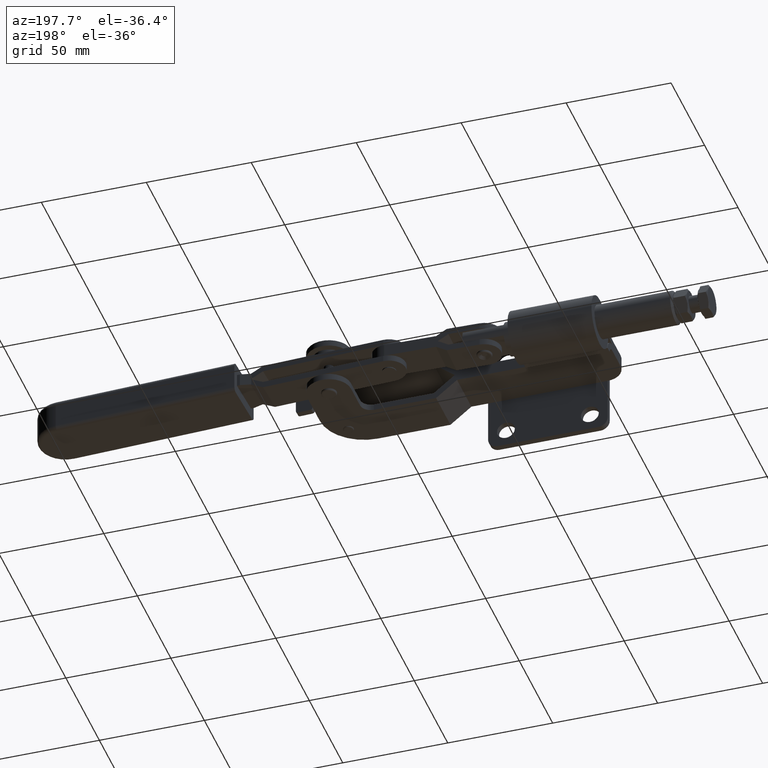
[diagram: clean part render]
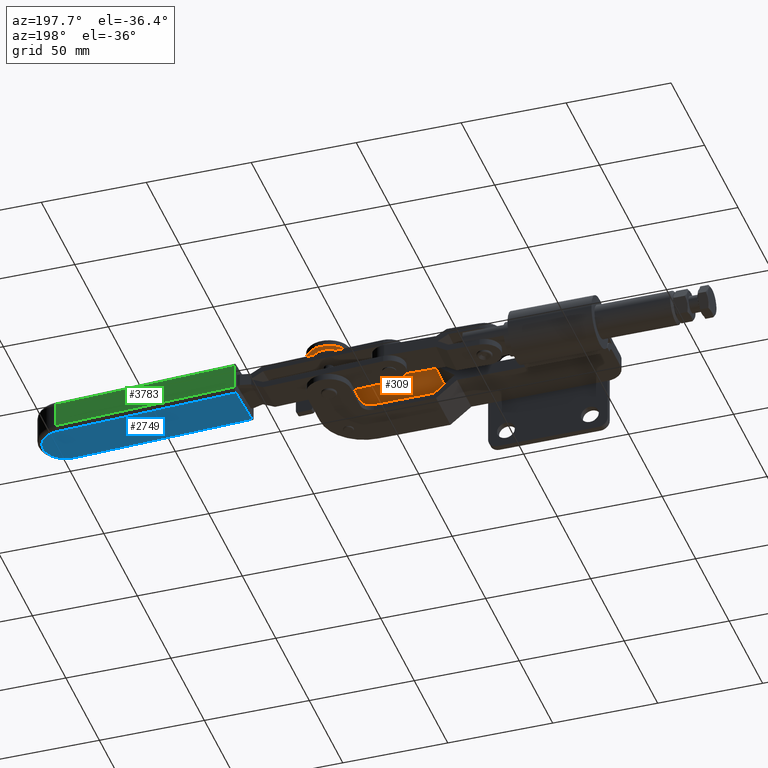
[diagram: same view with three faces highlighted in distinct colors, each labeled with its STEP entity id]
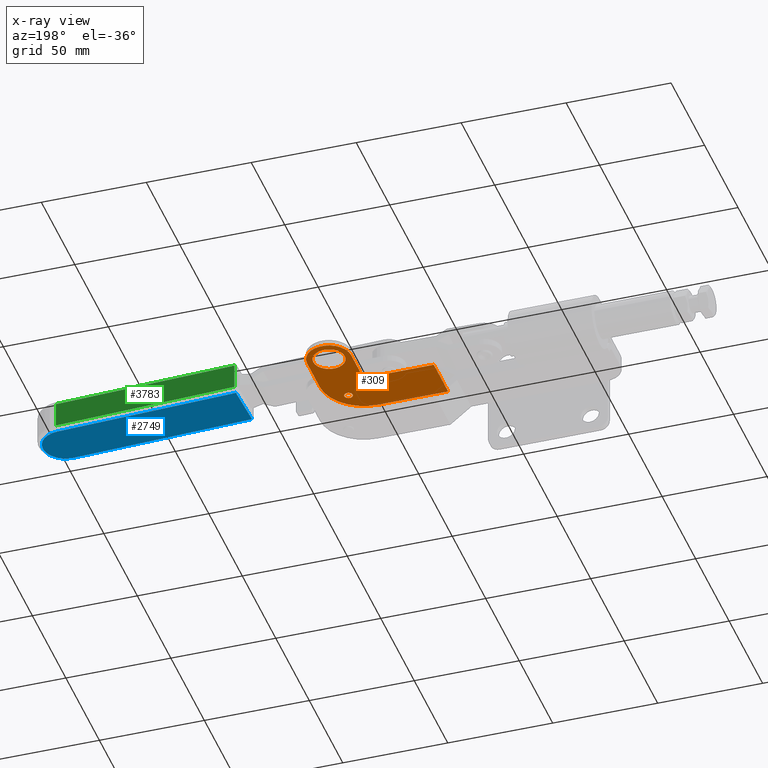
[diagram: x-ray of the same camera — body ghosted, the three highlighted faces saturated]
A machine part, auxiliary view with three faces highlighted in distinct colors.
The next image is the same camera in x-ray (body ghosted, the three faces saturated) — at least one of them is partly hidden behind the body in this view.
Their STEP definitions:

[orange] entity #309 — the highlighted planar face has unit normal (0, 0, -1).
#134 = VERTEX_POINT ( 'NONE', #5812 ) ;
#223 = ORIENTED_EDGE ( 'NONE', *, *, #3140, .T. ) ;
#291 = CARTESIAN_POINT ( 'NONE',  ( 128.9999999999991200, 13.89999999999999500, -2.985681531189183300 ) ) ;
#309 = ADVANCED_FACE ( 'NONE', ( #2424, #6955, #3869 ), #7378, .T. ) ;
#311 = EDGE_CURVE ( 'NONE', #6902, #1689, #5334, .T. ) ;
#344 = LINE ( 'NONE', #7649, #3299 ) ;
#439 = AXIS2_PLACEMENT_3D ( 'NONE', #5226, #7578, #4616 ) ;
#479 = VERTEX_POINT ( 'NONE', #2474 ) ;
#524 = ORIENTED_EDGE ( 'NONE', *, *, #620, .F. ) ;
#620 = EDGE_CURVE ( 'NONE', #7491, #6100, #3168, .T. ) ;
#663 = EDGE_CURVE ( 'NONE', #7793, #3771, #7708, .T. ) ;
#712 = ORIENTED_EDGE ( 'NONE', *, *, #2200, .T. ) ;
#822 = DIRECTION ( 'NONE',  ( 1.000000000000000000, 0.0000000000000000000, 0.0000000000000000000 ) ) ;
#992 = CARTESIAN_POINT ( 'NONE',  ( 121.4999999999991000, 43.00000000000000000, -2.985681531188855600 ) ) ;
#1089 = DIRECTION ( 'NONE',  ( -1.000000000000000000, 0.0000000000000000000, 0.0000000000000000000 ) ) ;
#1091 = CARTESIAN_POINT ( 'NONE',  ( 126.9999999999991200, 13.89999999999999500, -2.985681531189183300 ) ) ;
#1223 = CARTESIAN_POINT ( 'NONE',  ( 113.4999999999977100, 29.49999999999981900, -2.985681531189183300 ) ) ;
#1273 = CARTESIAN_POINT ( 'NONE',  ( 118.4999999999984400, 43.00000000000000000, -2.985681531189183300 ) ) ;
#1463 = ORIENTED_EDGE ( 'NONE', *, *, #1669, .F. ) ;
#1652 = AXIS2_PLACEMENT_3D ( 'NONE', #4969, #2731, #2557 ) ;
#1669 = EDGE_CURVE ( 'NONE', #134, #2898, #4701, .T. ) ;
#1677 = EDGE_LOOP ( 'NONE', ( #223, #5672 ) ) ;
#1689 = VERTEX_POINT ( 'NONE', #992 ) ;
#1709 = EDGE_LOOP ( 'NONE', ( #6700, #6314, #2111, #5544, #6568, #1463, #4672, #524 ) ) ;
#1895 = CARTESIAN_POINT ( 'NONE',  ( 139.5000000000001400, 24.00000000000002100, -2.985681531189183300 ) ) ;
#2023 = DIRECTION ( 'NONE',  ( -0.0000000000000000000, -0.0000000000000000000, 1.000000000000000000 ) ) ;
#2111 = ORIENTED_EDGE ( 'NONE', *, *, #3505, .F. ) ;
#2161 = EDGE_LOOP ( 'NONE', ( #712, #3935 ) ) ;
#2168 = CIRCLE ( 'NONE', #6033, 4.999999999999935200 ) ;
#2172 = CIRCLE ( 'NONE', #6064, 2.000000000000001800 ) ;
#2200 = EDGE_CURVE ( 'NONE', #1689, #6902, #6215, .T. ) ;
#2424 = FACE_BOUND ( 'NONE', #2161, .T. ) ;
#2442 = DIRECTION ( 'NONE',  ( 1.000000000000000000, 0.0000000000000000000, 0.0000000000000000000 ) ) ;
#2474 = CARTESIAN_POINT ( 'NONE',  ( 118.4999999999976700, 29.49999999999981900, -2.985681531189183300 ) ) ;
#2557 = DIRECTION ( 'NONE',  ( -1.000000000000000000, 0.0000000000000000000, 0.0000000000000000000 ) ) ;
#2574 = DIRECTION ( 'NONE',  ( 0.0000000000000000000, 0.0000000000000000000, 1.000000000000000000 ) ) ;
#2731 = DIRECTION ( 'NONE',  ( -0.0000000000000000000, -0.0000000000000000000, 1.000000000000000000 ) ) ;
#2814 = CARTESIAN_POINT ( 'NONE',  ( 85.00000000000015600, 24.49999999999989700, -2.985681531189183300 ) ) ;
#2898 = VERTEX_POINT ( 'NONE', #6962 ) ;
#2957 = EDGE_CURVE ( 'NONE', #6100, #134, #344, .T. ) ;
#2994 = CARTESIAN_POINT ( 'NONE',  ( 128.9999999999991200, 43.00000000000000000, -2.985681531188855600 ) ) ;
#3053 = DIRECTION ( 'NONE',  ( -0.0000000000000000000, -1.000000000000000000, -0.0000000000000000000 ) ) ;
#3140 = EDGE_CURVE ( 'NONE', #5074, #4910, #2172, .T. ) ;
#3168 = LINE ( 'NONE', #7580, #7046 ) ;
#3299 = VECTOR ( 'NONE', #6878, 1000.000000000000000 ) ;
#3312 = CARTESIAN_POINT ( 'NONE',  ( 85.00000000000015600, 73.50000000000000000, -2.985681531189183300 ) ) ;
#3429 = CARTESIAN_POINT ( 'NONE',  ( 136.4999999999991200, 43.00000000000000000, -2.985681531188855600 ) ) ;
#3450 = DIRECTION ( 'NONE',  ( -1.000000000000000000, 0.0000000000000000000, 0.0000000000000000000 ) ) ;
#3491 = EDGE_CURVE ( 'NONE', #2898, #3771, #6871, .T. ) ;
#3505 = EDGE_CURVE ( 'NONE', #7793, #5670, #3571, .T. ) ;
#3571 = CIRCLE ( 'NONE', #6165, 10.50000000000067500 ) ;
#3583 = DIRECTION ( 'NONE',  ( -1.000000000000000000, 0.0000000000000000000, 0.0000000000000000000 ) ) ;
#3771 = VERTEX_POINT ( 'NONE', #1895 ) ;
#3867 = DIRECTION ( 'NONE',  ( -0.0000000000000000000, -0.0000000000000000000, 1.000000000000000000 ) ) ;
#3869 = FACE_OUTER_BOUND ( 'NONE', #1709, .T. ) ;
#3935 = ORIENTED_EDGE ( 'NONE', *, *, #311, .T. ) ;
#4151 = DIRECTION ( 'NONE',  ( 0.0000000000000000000, 0.0000000000000000000, -1.000000000000000000 ) ) ;
#4291 = CARTESIAN_POINT ( 'NONE',  ( 118.4999999999984400, 43.00000000000000000, -2.985681531189183300 ) ) ;
#4365 = CIRCLE ( 'NONE', #1652, 2.000000000000001800 ) ;
#4449 = VECTOR ( 'NONE', #3053, 1000.000000000000000 ) ;
#4522 = CARTESIAN_POINT ( 'NONE',  ( 139.5000000000001400, 43.00000000000000000, -2.985681531189183300 ) ) ;
#4546 = LINE ( 'NONE', #1273, #7407 ) ;
#4616 = DIRECTION ( 'NONE',  ( 1.000000000000000000, 0.0000000000000000000, 0.0000000000000000000 ) ) ;
#4672 = ORIENTED_EDGE ( 'NONE', *, *, #2957, .F. ) ;
#4701 = LINE ( 'NONE', #7592, #7771 ) ;
#4910 = VERTEX_POINT ( 'NONE', #1091 ) ;
#4969 = CARTESIAN_POINT ( 'NONE',  ( 128.9999999999991200, 13.89999999999999500, -2.985681531189183300 ) ) ;
#5010 = DIRECTION ( 'NONE',  ( -1.000000000000000000, 0.0000000000000000000, 0.0000000000000000000 ) ) ;
#5074 = VERTEX_POINT ( 'NONE', #5424 ) ;
#5075 = CARTESIAN_POINT ( 'NONE',  ( 139.5000000000001400, 73.50000000000000000, -2.985681531189183300 ) ) ;
#5169 = DIRECTION ( 'NONE',  ( 0.0000000000000000000, 0.0000000000000000000, -1.000000000000000000 ) ) ;
#5226 = CARTESIAN_POINT ( 'NONE',  ( 128.9999999999991200, 43.00000000000000000, -2.985681531188855600 ) ) ;
#5262 = CARTESIAN_POINT ( 'NONE',  ( 118.5000000000001600, 24.00000000000002100, -2.985681531189183300 ) ) ;
#5334 = CIRCLE ( 'NONE', #5801, 7.500000000000007100 ) ;
#5395 = EDGE_CURVE ( 'NONE', #479, #7491, #2168, .T. ) ;
#5424 = CARTESIAN_POINT ( 'NONE',  ( 130.9999999999991200, 13.89999999999999500, -2.985681531189183300 ) ) ;
#5544 = ORIENTED_EDGE ( 'NONE', *, *, #663, .T. ) ;
#5670 = VERTEX_POINT ( 'NONE', #4291 ) ;
#5672 = ORIENTED_EDGE ( 'NONE', *, *, #5749, .T. ) ;
#5749 = EDGE_CURVE ( 'NONE', #4910, #5074, #4365, .T. ) ;
#5764 = AXIS2_PLACEMENT_3D ( 'NONE', #5262, #5773, #5010 ) ;
#5773 = DIRECTION ( 'NONE',  ( -0.0000000000000000000, -0.0000000000000000000, 1.000000000000000000 ) ) ;
#5801 = AXIS2_PLACEMENT_3D ( 'NONE', #2994, #2574, #2442 ) ;
#5812 = CARTESIAN_POINT ( 'NONE',  ( 85.00000000000015600, 3.000000000000002700, -2.985681531189183300 ) ) ;
#6033 = AXIS2_PLACEMENT_3D ( 'NONE', #1223, #5169, #3450 ) ;
#6064 = AXIS2_PLACEMENT_3D ( 'NONE', #291, #3867, #3583 ) ;
#6100 = VERTEX_POINT ( 'NONE', #2814 ) ;
#6165 = AXIS2_PLACEMENT_3D ( 'NONE', #7698, #2023, #1089 ) ;
#6215 = CIRCLE ( 'NONE', #439, 7.500000000000007100 ) ;
#6314 = ORIENTED_EDGE ( 'NONE', *, *, #7089, .F. ) ;
#6429 = DIRECTION ( 'NONE',  ( -1.000000000000000000, 3.056781455465801300E-017, 0.0000000000000000000 ) ) ;
#6568 = ORIENTED_EDGE ( 'NONE', *, *, #3491, .F. ) ;
#6700 = ORIENTED_EDGE ( 'NONE', *, *, #5395, .F. ) ;
#6753 = DIRECTION ( 'NONE',  ( -5.756711979537772500E-014, -1.000000000000000000, 0.0000000000000000000 ) ) ;
#6871 = CIRCLE ( 'NONE', #5764, 21.00000000000000400 ) ;
#6878 = DIRECTION ( 'NONE',  ( -0.0000000000000000000, -1.000000000000000000, -0.0000000000000000000 ) ) ;
#6902 = VERTEX_POINT ( 'NONE', #3429 ) ;
#6955 = FACE_BOUND ( 'NONE', #1677, .T. ) ;
#6962 = CARTESIAN_POINT ( 'NONE',  ( 118.5000000000001600, 2.999999999999999600, -2.985681531189183300 ) ) ;
#7040 = AXIS2_PLACEMENT_3D ( 'NONE', #3312, #4151, #7195 ) ;
#7046 = VECTOR ( 'NONE', #6429, 1000.000000000000000 ) ;
#7089 = EDGE_CURVE ( 'NONE', #5670, #479, #4546, .T. ) ;
#7195 = DIRECTION ( 'NONE',  ( -1.000000000000000000, 0.0000000000000000000, -0.0000000000000000000 ) ) ;
#7230 = CARTESIAN_POINT ( 'NONE',  ( 113.4999999999977100, 24.49999999999988300, -2.985681531189183300 ) ) ;
#7378 = PLANE ( 'NONE',  #7040 ) ;
#7407 = VECTOR ( 'NONE', #6753, 1000.000000000000000 ) ;
#7491 = VERTEX_POINT ( 'NONE', #7230 ) ;
#7578 = DIRECTION ( 'NONE',  ( 0.0000000000000000000, 0.0000000000000000000, 1.000000000000000000 ) ) ;
#7580 = CARTESIAN_POINT ( 'NONE',  ( -1.734723475976807100E-015, 24.49999999999989700, -2.985681531189183300 ) ) ;
#7592 = CARTESIAN_POINT ( 'NONE',  ( 9.000000000000119000, 2.999999999999999600, -2.985681531189183300 ) ) ;
#7649 = CARTESIAN_POINT ( 'NONE',  ( 85.00000000000015600, 73.50000000000000000, -2.985681531189183300 ) ) ;
#7698 = CARTESIAN_POINT ( 'NONE',  ( 128.9999999999991200, 43.00000000000000000, -2.985681531189183300 ) ) ;
#7708 = LINE ( 'NONE', #5075, #4449 ) ;
#7771 = VECTOR ( 'NONE', #822, 1000.000000000000000 ) ;
#7793 = VERTEX_POINT ( 'NONE', #4522 ) ;

[blue] entity #2749 — the highlighted planar face has unit normal (-0, 0, -1).
#152 = DIRECTION ( 'NONE',  ( 0.04102362777264245000, 0.9991581766489086000, 1.190246189626089300E-016 ) ) ;
#170 = LINE ( 'NONE', #1943, #3316 ) ;
#410 = LINE ( 'NONE', #4010, #3172 ) ;
#591 = CARTESIAN_POINT ( 'NONE',  ( 256.2729906085909900, 37.77982032026595500, -18.98568153118883500 ) ) ;
#748 = CARTESIAN_POINT ( 'NONE',  ( 256.7114889799871700, 48.47083145945572400, -18.98568153118884900 ) ) ;
#952 = ORIENTED_EDGE ( 'NONE', *, *, #1517, .T. ) ;
#1031 = VERTEX_POINT ( 'NONE', #3044 ) ;
#1287 = DIRECTION ( 'NONE',  ( 0.9991599195504589100, -0.04098115620526661400, -2.881746486405707300E-017 ) ) ;
#1517 = EDGE_CURVE ( 'NONE', #6760, #7764, #7291, .T. ) ;
#1593 = DIRECTION ( 'NONE',  ( -2.391543916884220100E-017, 1.201068257676475200E-016, -1.000000000000000000 ) ) ;
#1807 = EDGE_CURVE ( 'NONE', #1031, #6760, #170, .T. ) ;
#1943 = CARTESIAN_POINT ( 'NONE',  ( 169.5244894003020900, 28.62718524907047200, -18.98568153118885200 ) ) ;
#2003 = DIRECTION ( 'NONE',  ( 0.04098115620526528200, 0.9991599195504590200, 1.190258440231678600E-016 ) ) ;
#2217 = EDGE_LOOP ( 'NONE', ( #3426, #952, #7342, #3804 ) ) ;
#2619 = CIRCLE ( 'NONE', #7509, 10.69999999999981800 ) ;
#2749 = ADVANCED_FACE ( 'NONE', ( #3785 ), #7181, .T. ) ;
#3044 = CARTESIAN_POINT ( 'NONE',  ( 169.6065366559215000, 30.62550160417365700, -18.98568153118885200 ) ) ;
#3172 = VECTOR ( 'NONE', #3365, 1000.000000000000100 ) ;
#3257 = DIRECTION ( 'NONE',  ( -2.391543916884221600E-017, 1.201068257676474700E-016, -1.000000000000000000 ) ) ;
#3267 = CARTESIAN_POINT ( 'NONE',  ( 170.4844422910491100, 52.00748660377741600, -18.98568153118884500 ) ) ;
#3316 = VECTOR ( 'NONE', #152, 1000.000000000000100 ) ;
#3365 = DIRECTION ( 'NONE',  ( -0.9991599195504590200, 0.04098115620526389400, 2.881746486405677700E-017 ) ) ;
#3426 = ORIENTED_EDGE ( 'NONE', *, *, #1807, .T. ) ;
#3785 = FACE_OUTER_BOUND ( 'NONE', #2217, .T. ) ;
#3804 = ORIENTED_EDGE ( 'NONE', *, *, #7359, .T. ) ;
#3885 = EDGE_CURVE ( 'NONE', #7764, #4012, #2619, .T. ) ;
#4010 = CARTESIAN_POINT ( 'NONE',  ( 169.6064517127126100, 30.62550508817140500, -18.98568153118885200 ) ) ;
#4012 = VERTEX_POINT ( 'NONE', #6349 ) ;
#4218 = VECTOR ( 'NONE', #1287, 1000.000000000000100 ) ;
#5402 = AXIS2_PLACEMENT_3D ( 'NONE', #5791, #1593, #2003 ) ;
#5791 = CARTESIAN_POINT ( 'NONE',  ( 256.2729906085909900, 37.77982032026595500, -18.98568153118883500 ) ) ;
#6349 = CARTESIAN_POINT ( 'NONE',  ( 255.8344922371946700, 27.08880918107624000, -18.98568153118885600 ) ) ;
#6713 = DIRECTION ( 'NONE',  ( 0.04098115620526349800, 0.9991599195504590200, 0.0000000000000000000 ) ) ;
#6760 = VERTEX_POINT ( 'NONE', #3267 ) ;
#6961 = CARTESIAN_POINT ( 'NONE',  ( 256.7114889799871700, 48.47083145945572400, -18.98568153118884900 ) ) ;
#7181 = PLANE ( 'NONE',  #5402 ) ;
#7291 = LINE ( 'NONE', #748, #4218 ) ;
#7342 = ORIENTED_EDGE ( 'NONE', *, *, #3885, .T. ) ;
#7359 = EDGE_CURVE ( 'NONE', #4012, #1031, #410, .T. ) ;
#7509 = AXIS2_PLACEMENT_3D ( 'NONE', #591, #3257, #6713 ) ;
#7764 = VERTEX_POINT ( 'NONE', #6961 ) ;

[green] entity #3783 — the highlighted planar face has unit normal (-0.041, -0.9992, -0).
#216 = LINE ( 'NONE', #2512, #1415 ) ;
#308 = VECTOR ( 'NONE', #2350, 1000.000000000000000 ) ;
#440 = VERTEX_POINT ( 'NONE', #610 ) ;
#541 = VECTOR ( 'NONE', #5950, 1000.000000000000100 ) ;
#610 = CARTESIAN_POINT ( 'NONE',  ( 170.5664895466685500, 54.00580295888057200, -16.98568153118885200 ) ) ;
#1247 = CARTESIAN_POINT ( 'NONE',  ( 256.7934512923978300, 50.46915129855659600, -16.98568153118885200 ) ) ;
#1415 = VECTOR ( 'NONE', #6528, 1000.000000000000000 ) ;
#1515 = CARTESIAN_POINT ( 'NONE',  ( 170.5664895466685500, 54.00580295888058700, -4.985681531188866700 ) ) ;
#1756 = EDGE_CURVE ( 'NONE', #5437, #5208, #3917, .T. ) ;
#1997 = LINE ( 'NONE', #2918, #3405 ) ;
#2257 = ORIENTED_EDGE ( 'NONE', *, *, #1756, .T. ) ;
#2336 = EDGE_CURVE ( 'NONE', #7084, #440, #1997, .T. ) ;
#2350 = DIRECTION ( 'NONE',  ( 2.391543916884221600E-017, -1.201068257676474700E-016, 1.000000000000000000 ) ) ;
#2376 = ORIENTED_EDGE ( 'NONE', *, *, #6331, .T. ) ;
#2481 = CARTESIAN_POINT ( 'NONE',  ( 256.7934512923978300, 50.46915129855659600, -18.98568153118884900 ) ) ;
#2512 = CARTESIAN_POINT ( 'NONE',  ( 170.5664895466685500, 54.00580295888057200, -18.98568153118884500 ) ) ;
#2819 = DIRECTION ( 'NONE',  ( -0.9991599195504590200, 0.04098115620526662100, 2.881746486405707900E-017 ) ) ;
#2894 = EDGE_LOOP ( 'NONE', ( #7774, #3902, #2376, #2257 ) ) ;
#2918 = CARTESIAN_POINT ( 'NONE',  ( 170.5664895466685500, 54.00580295888057200, -16.98568153118885200 ) ) ;
#2933 = DIRECTION ( 'NONE',  ( -0.9991599195504589100, 0.04098115620526661400, 2.881746486405707300E-017 ) ) ;
#3214 = CARTESIAN_POINT ( 'NONE',  ( 256.7934512923978300, 50.46915129855659600, -18.98568153118884900 ) ) ;
#3405 = VECTOR ( 'NONE', #2933, 1000.000000000000100 ) ;
#3456 = LINE ( 'NONE', #2481, #308 ) ;
#3521 = CARTESIAN_POINT ( 'NONE',  ( 256.7934512923978300, 50.46915129855659600, -4.985681531188869400 ) ) ;
#3783 = ADVANCED_FACE ( 'NONE', ( #7433 ), #5742, .F. ) ;
#3789 = AXIS2_PLACEMENT_3D ( 'NONE', #3214, #6885, #2819 ) ;
#3902 = ORIENTED_EDGE ( 'NONE', *, *, #2336, .T. ) ;
#3917 = LINE ( 'NONE', #6056, #541 ) ;
#5208 = VERTEX_POINT ( 'NONE', #3521 ) ;
#5437 = VERTEX_POINT ( 'NONE', #1515 ) ;
#5742 = PLANE ( 'NONE',  #3789 ) ;
#5950 = DIRECTION ( 'NONE',  ( 0.9991599195504589100, -0.04098115620526661400, -2.881746486405707300E-017 ) ) ;
#6056 = CARTESIAN_POINT ( 'NONE',  ( 256.7934512923978300, 50.46915129855659600, -4.985681531188869400 ) ) ;
#6331 = EDGE_CURVE ( 'NONE', #440, #5437, #216, .T. ) ;
#6528 = DIRECTION ( 'NONE',  ( 2.391543916884221600E-017, -1.201068257676474700E-016, 1.000000000000000000 ) ) ;
#6529 = EDGE_CURVE ( 'NONE', #7084, #5208, #3456, .T. ) ;
#6885 = DIRECTION ( 'NONE',  ( -0.04098115620526662100, -0.9991599195504590200, -1.190258440231678100E-016 ) ) ;
#7084 = VERTEX_POINT ( 'NONE', #1247 ) ;
#7433 = FACE_OUTER_BOUND ( 'NONE', #2894, .T. ) ;
#7774 = ORIENTED_EDGE ( 'NONE', *, *, #6529, .F. ) ;